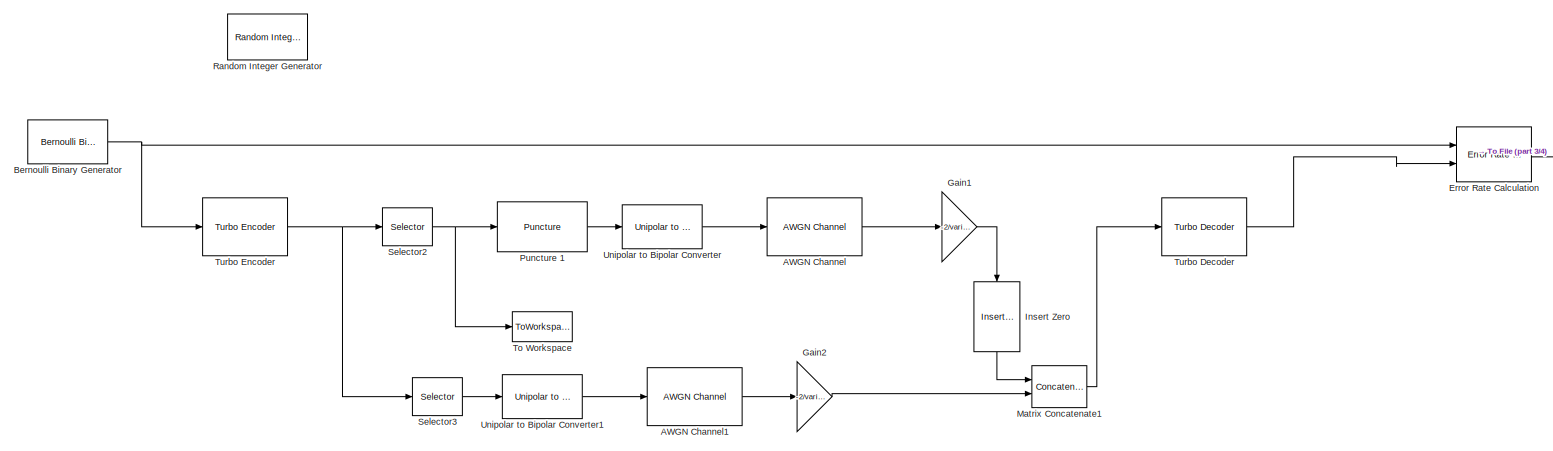
[diagram: root canvas - part 1/4, top center region]
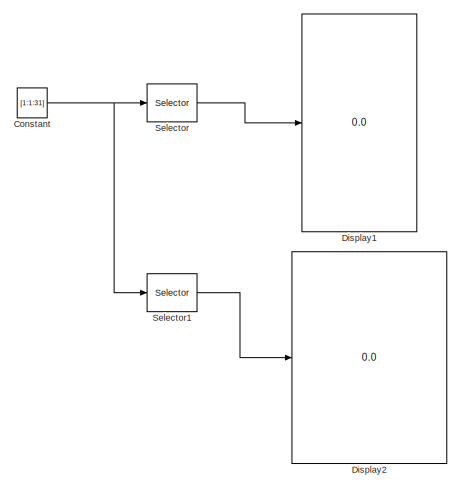
[diagram: root canvas - part 2/4, middle left region]
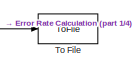
[diagram: root canvas - part 3/4, top right region]
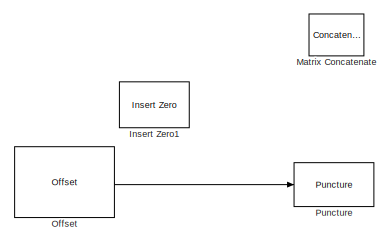
[diagram: root canvas - part 4/4, bottom right region]
MODEL slx_b36c742aed57
KIND model
CONFIG AbsTol = auto
CONFIG EnableMultiTasking = off
CONFIG FixedStep = auto
CONFIG MaxStep = auto
CONFIG MinStep = auto
CONFIG RelTol = 1e-3
CONFIG SampleTimeConstraint = Unconstrained
CONFIG Solver = VariableStepAuto
CONFIG SolverName = VariableStepAuto
CONFIG StartTime = 0.0
CONFIG StopTime = 10
BLOCK [Reference] AWGN Channel  REF=commchan3/AWGN
Channel
  Ports = [1, 1]
  SourceBlock = commchan3/AWGN\nChannel
  SourceType = AWGN Channel
  UserDataPersistent = on
BLOCK [Reference] AWGN Channel1  REF=commchan3/AWGN
Channel
  Ports = [1, 1]
  SourceBlock = commchan3/AWGN\nChannel
  SourceType = AWGN Channel
  UserDataPersistent = on
BLOCK [Reference] Bernoulli Binary Generator  REF=commrandsrc3/Bernoulli Binary
Generator
  Ports = [0, 1]
  SourceBlock = commrandsrc3/Bernoulli Binary\nGenerator
  SourceType = Bernoulli Binary Generator
BLOCK [Constant] Constant
  Commented = on
  Value = [1:1:31]
BLOCK [Display] Display1
  Commented = on
  Decimation = 1
  Ports = [1]
BLOCK [Display] Display2
  Commented = on
  Decimation = 1
  Ports = [1]
BLOCK [Reference] Error Rate Calculation  REF=commsink2/Error Rate
Calculation
  Ports = [2, 1]
  SourceBlock = commsink2/Error Rate\nCalculation
  SourceType = Error Rate Calculation
BLOCK [Gain] Gain1
  Gain = -2/variance
BLOCK [Gain] Gain2
  Gain = -2/variance
BLOCK [Reference] Insert Zero  REF=commsequence2/Insert Zero
  Ports = [1, 1]
  SourceBlock = commsequence2/Insert Zero
  SourceType = Insert Zero
BLOCK [Reference] Insert Zero1  REF=commsequence2/Insert Zero
  Commented = on
  Ports = [1, 1]
  SourceBlock = commsequence2/Insert Zero
  SourceType = Insert Zero
BLOCK [Concatenate] Matrix Concatenate
  Commented = on
  ConcatenateDimension = 2
  Mode = Multidimensional array
  Ports = [2, 1]
BLOCK [Concatenate] Matrix Concatenate1
  ConcatenateDimension = 2
  Ports = [2, 1]
BLOCK [Reference] Offset  REF=dspsigops/Offset
  Commented = on
  Ports = [2, 1]
  SourceBlock = dspsigops/Offset
  SourceType = Offset
BLOCK [Reference] Puncture   REF=commsequence2/Puncture
  Commented = on
  Ports = [1, 1]
  SourceBlock = commsequence2/Puncture
  SourceType = Puncture
BLOCK [Reference] Puncture 1  REF=commsequence2/Puncture
  Ports = [1, 1]
  SourceBlock = commsequence2/Puncture
  SourceType = Puncture
BLOCK [Reference] Random Integer Generator  REF=commrandsrc3/Random Integer
Generator
  Commented = on
  Ports = [0, 1]
  SourceBlock = commrandsrc3/Random Integer\nGenerator
  SourceType = Random Integer Generator
BLOCK [Selector] Selector
  Commented = on
  IndexOptions = Starting index (dialog)
  Indices = 1
  InputPortWidth = 31
  OutputSizes = 15
  Ports = [1, 1]
BLOCK [Selector] Selector1
  Commented = on
  IndexOptions = Starting index (dialog)
  Indices = 16
  InputPortWidth = 31
  OutputSizes = 16
  Ports = [1, 1]
BLOCK [Selector] Selector2
  IndexOptions = Starting index (dialog)
  Indices = 1
  InputPortWidth = blockLen*7+32
  OutputSizes = blockLen*7
  Ports = [1, 1]
BLOCK [Selector] Selector3
  IndexOptions = Starting index (dialog)
  Indices = blockLen*7+1
  InputPortWidth = blockLen*7+32
  OutputSizes = 32
  Ports = [1, 1]
BLOCK [ToFile] To File
  Filename = ErrorVecSim.mat
  MatrixName = ErrorVecSim
  Ports = [1]
BLOCK [ToWorkspace] To Workspace
  FixptAsFi = on
  MaxDataPoints = inf
  Ports = [1]
  SampleTime = -1
  Save2DSignal = 3-D array (concatenate along third dimension)
  VariableName = enc
BLOCK [Reference] Turbo Decoder  REF=commcnvcod2/Turbo Decoder
  Ports = [1, 1]
  SourceBlock = commcnvcod2/Turbo Decoder
  SourceType = Turbo Decoder
BLOCK [Reference] Turbo Encoder  REF=commcnvcod2/Turbo Encoder
  Ports = [1, 1]
  SourceBlock = commcnvcod2/Turbo Encoder
  SourceType = Turbo Encoder
BLOCK [Reference] Unipolar to Bipolar Converter  REF=commutil2/Unipolar to
Bipolar
Converter
  Ports = [1, 1]
  SourceBlock = commutil2/Unipolar to\nBipolar\nConverter
  SourceType = Unipolar to Bipolar Converter
BLOCK [Reference] Unipolar to Bipolar Converter1  REF=commutil2/Unipolar to
Bipolar
Converter
  Ports = [1, 1]
  SourceBlock = commutil2/Unipolar to\nBipolar\nConverter
  SourceType = Unipolar to Bipolar Converter
LINE AWGN Channel1:1 -> Gain2:1
LINE AWGN Channel:1 -> Gain1:1
NET Bernoulli Binary Generator:1 -> Error Rate Calculation:1, Turbo Encoder:1
NET Constant:1 -> Selector1:1, Selector:1
LINE Error Rate Calculation:1 -> To File:1
LINE Gain1:1 -> Insert Zero:1
LINE Gain2:1 -> Matrix Concatenate1:2
LINE Insert Zero:1 -> Matrix Concatenate1:1
LINE Matrix Concatenate1:1 -> Turbo Decoder:1
LINE Offset:1 -> Puncture :1
LINE Puncture 1:1 -> Unipolar to Bipolar Converter:1
LINE Selector1:1 -> Display2:1
NET Selector2:1 -> Puncture 1:1, To Workspace:1
LINE Selector3:1 -> Unipolar to Bipolar Converter1:1
LINE Selector:1 -> Display1:1
LINE Turbo Decoder:1 -> Error Rate Calculation:2
NET Turbo Encoder:1 -> Selector2:1, Selector3:1
LINE Unipolar to Bipolar Converter1:1 -> AWGN Channel1:1
LINE Unipolar to Bipolar Converter:1 -> AWGN Channel:1
note: NET lines group one-source signal fan-out (src -> all destinations, sorted); 1:1 wires keep LINE
